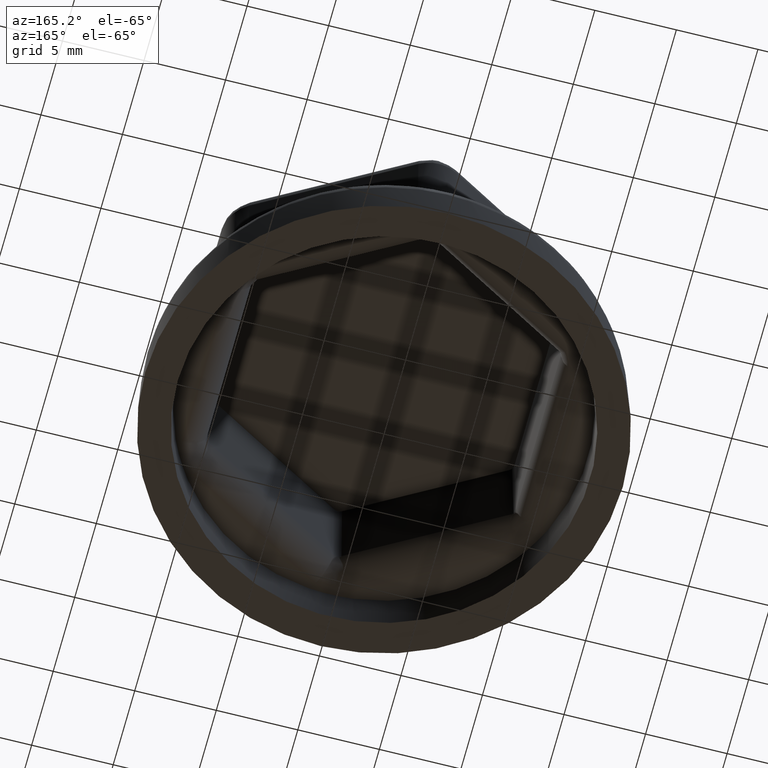
[diagram: clean part render]
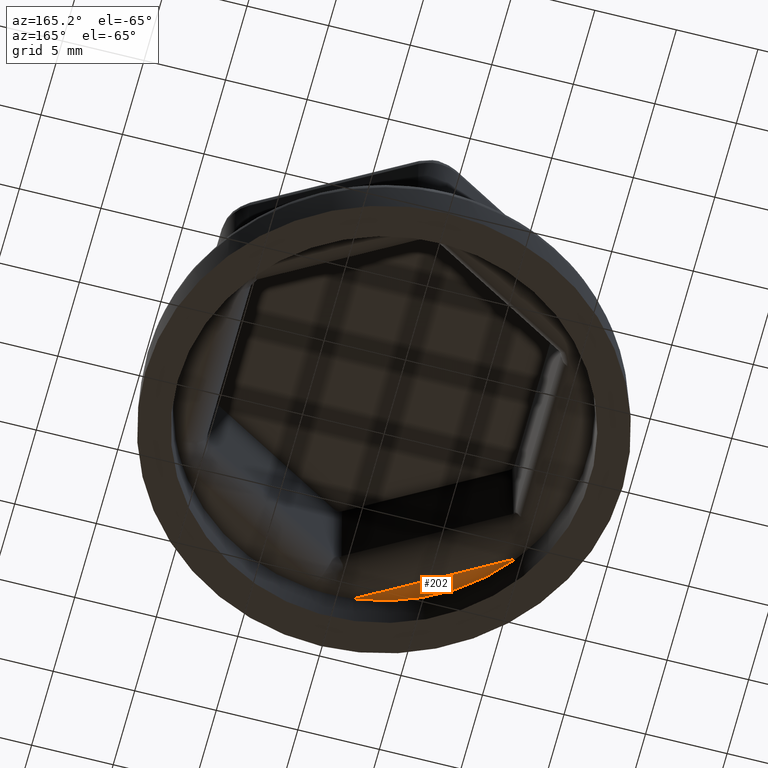
[diagram: same view with one face highlighted and labeled with its STEP entity id]
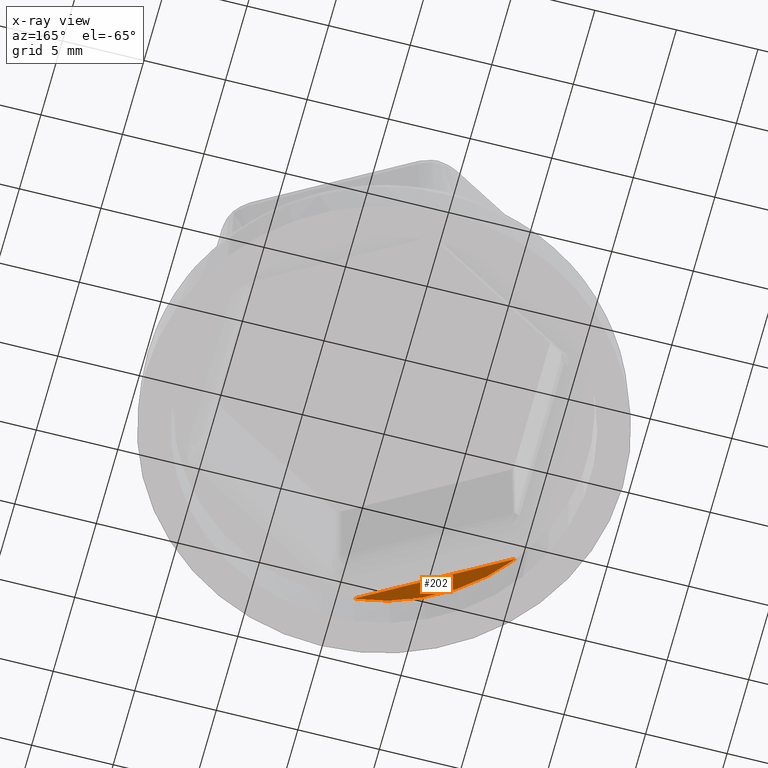
[diagram: x-ray of the same camera — body ghosted, the highlighted face saturated]
A machine part, auxiliary view. The second image highlights one B-rep face of the part: STEP entity #202.
The next image is the same camera in x-ray: the body ghosted, the highlighted face saturated — about 0% of this face is hidden behind the body in this view.
In plain terms, the highlighted planar face has unit normal (0, 0, 1).
Its self-contained STEP definition (entity closure, byte-faithful):
#202 = ADVANCED_FACE( '', ( #464 ), #465, .F. );
#464 = FACE_OUTER_BOUND( '', #5127, .T. );
#465 = PLANE( '', #5128 );
#5127 = EDGE_LOOP( '', ( #5870, #5871 ) );
#5128 = AXIS2_PLACEMENT_3D( '', #5872, #5873, #5874 );
#5870 = ORIENTED_EDGE( '', *, *, #5997, .F. );
#5871 = ORIENTED_EDGE( '', *, *, #5942, .F. );
#5872 = CARTESIAN_POINT( '', ( 0.000000000000000, 0.000000000000000, 2.80000000000000 ) );
#5873 = DIRECTION( '', ( 0.000000000000000, 0.000000000000000, 1.00000000000000 ) );
#5874 = DIRECTION( '', ( 1.00000000000000, 0.000000000000000, 0.000000000000000 ) );
#5942 = EDGE_CURVE( '', #6281, #6288, #6290, .T. );
#5997 = EDGE_CURVE( '', #6288, #6281, #6373, .T. );
#6281 = VERTEX_POINT( '', #6956 );
#6288 = VERTEX_POINT( '', #6990 );
#6290 = LINE( '', #6992, #6993 );
#6373 = CIRCLE( '', #7187, 12.5000000000000 );
#6956 = CARTESIAN_POINT( '', ( -1.42038393168932, -12.4190381868565, 2.80000000000000 ) );
#6990 = CARTESIAN_POINT( '', ( -10.0450105945421, -7.43960766139840, 2.80000000000000 ) );
#6992 = CARTESIAN_POINT( '', ( -5.73269726311569, -9.92932292412742, 2.80000000000000 ) );
#6993 = VECTOR( '', #8924, 1000.00000000000 );
#7187 = AXIS2_PLACEMENT_3D( '', #9036, #9037, #9038 );
#8924 = DIRECTION( '', ( -0.866025403784439, 0.500000000000000, 0.000000000000000 ) );
#9036 = CARTESIAN_POINT( '', ( 0.000000000000000, 0.000000000000000, 2.80000000000000 ) );
#9037 = DIRECTION( '', ( 0.000000000000000, 0.000000000000000, 1.00000000000000 ) );
#9038 = DIRECTION( '', ( 1.00000000000000, 0.000000000000000, 0.000000000000000 ) );